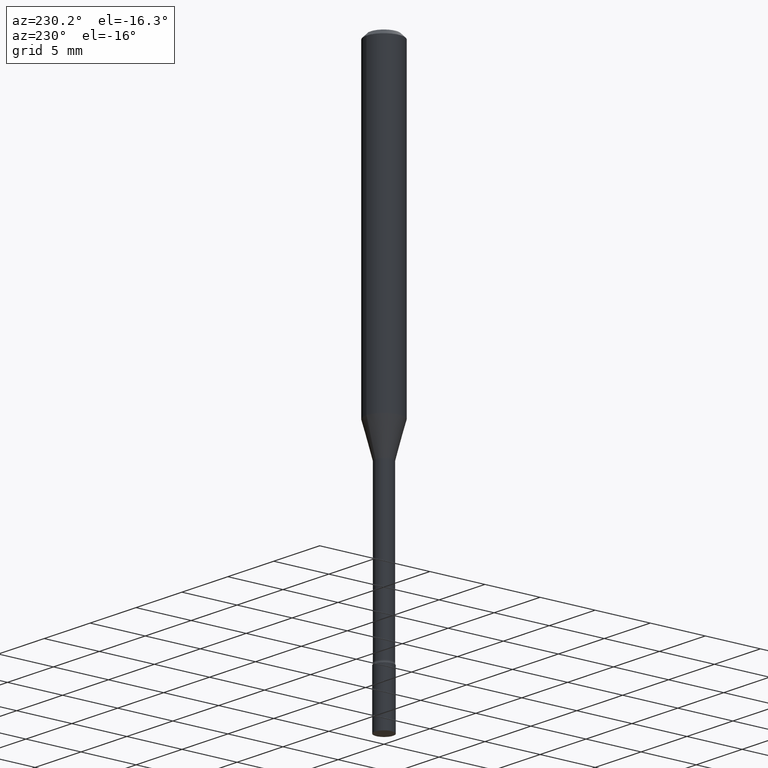
[diagram: clean part render]
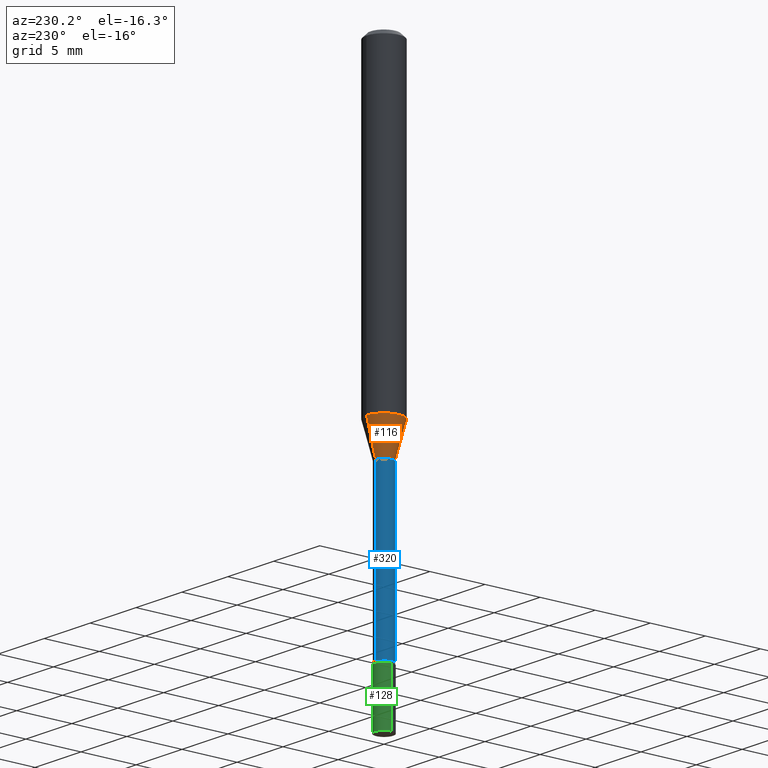
[diagram: same view with three faces highlighted in distinct colors, each labeled with its STEP entity id]
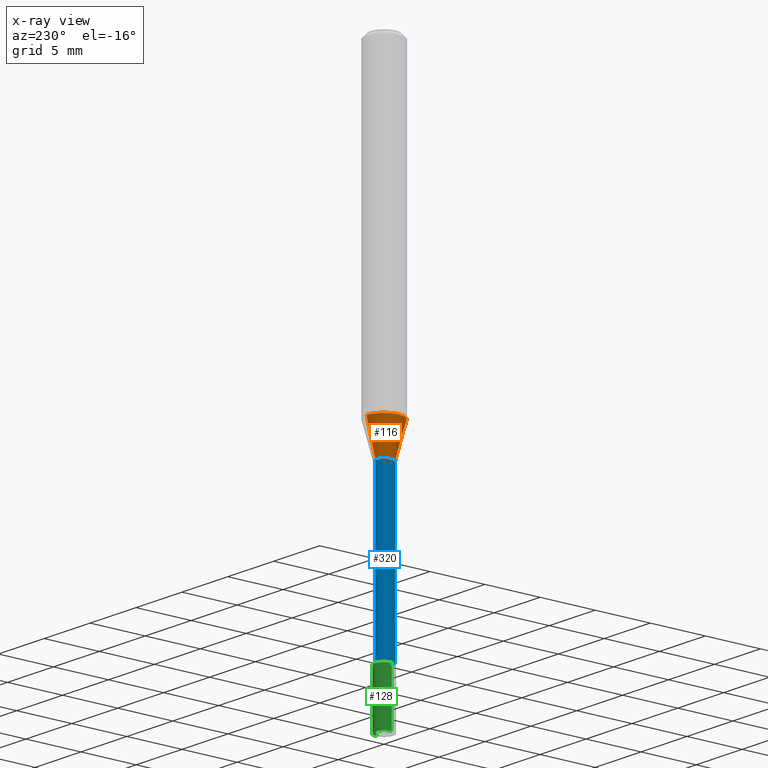
[diagram: x-ray of the same camera — body ghosted, the three highlighted faces saturated]
A machine part, auxiliary view with three faces highlighted in distinct colors.
The next image is the same camera in x-ray (body ghosted, the three faces saturated) — at least one of them is partly hidden behind the body in this view.
Their STEP definitions:

[orange] entity #116 — the highlighted conical surface has half-angle 15 deg.
#3 = DIRECTION ( 'NONE',  ( -2.445446564230640658E-29, 3.491513190587917155E-15, 1.000000000000000000 ) ) ;
#4 = DIRECTION ( 'NONE',  ( -6.982962677686265922E-15, -1.000000000000000000, 4.370956789862821150E-15 ) ) ;
#10 = EDGE_CURVE ( 'NONE', #101, #502, #59, .T. ) ;
#22 = CARTESIAN_POINT ( 'NONE',  ( -4.364351673553646016E-16, -0.06250000000000383027, -1.100760976698174298 ) ) ;
#35 = AXIS2_PLACEMENT_3D ( 'NONE', #194, #3, #276 ) ;
#40 = CIRCLE ( 'NONE', #452, 0.03106111260566394444 ) ;
#56 = EDGE_LOOP ( 'NONE', ( #448, #264, #328, #95 ) ) ;
#59 = LINE ( 'NONE', #461, #353 ) ;
#74 = LINE ( 'NONE', #106, #374 ) ;
#95 = ORIENTED_EDGE ( 'NONE', *, *, #193, .F. ) ;
#101 = VERTEX_POINT ( 'NONE', #268 ) ;
#106 = CARTESIAN_POINT ( 'NONE',  ( 2.207024792658396852E-16, 0.03106111260565969090, -1.218092501787273241 ) ) ;
#111 = FACE_OUTER_BOUND ( 'NONE', #56, .T. ) ;
#116 = ADVANCED_FACE ( 'NONE', ( #111 ), #157, .T. ) ;
#125 = DIRECTION ( 'NONE',  ( -6.982962677686265922E-15, -1.000000000000000000, 4.397537249142380957E-15 ) ) ;
#152 = DIRECTION ( 'NONE',  ( 1.839019923739597160E-15, 0.2588190451025245142, 0.9659258262890673130 ) ) ;
#157 = CONICAL_SURFACE ( 'NONE', #35, 0.03106111260566394444, 0.2617993877991497964 ) ;
#169 = CIRCLE ( 'NONE', #474, 0.06250000000000000000 ) ;
#181 = CARTESIAN_POINT ( 'NONE',  ( 2.978780123410792482E-29, -4.252986037346500323E-15, -1.218092501787273241 ) ) ;
#188 = EDGE_CURVE ( 'NONE', #212, #424, #74, .T. ) ;
#193 = EDGE_CURVE ( 'NONE', #424, #502, #169, .T. ) ;
#194 = CARTESIAN_POINT ( 'NONE',  ( 2.978780123410792482E-29, -4.252986037346500323E-15, -1.218092501787273241 ) ) ;
#212 = VERTEX_POINT ( 'NONE', #312 ) ;
#238 = DIRECTION ( 'NONE',  ( -2.445446564230640658E-29, 3.491513190587917155E-15, 1.000000000000000000 ) ) ;
#264 = ORIENTED_EDGE ( 'NONE', *, *, #416, .T. ) ;
#268 = CARTESIAN_POINT ( 'NONE',  ( -2.168985900527319414E-16, -0.03106111260566819451, -1.218092501787273019 ) ) ;
#270 = CARTESIAN_POINT ( 'NONE',  ( 2.691852148505715417E-29, -3.843321469826115367E-15, -1.100760976698174520 ) ) ;
#276 = DIRECTION ( 'NONE',  ( -6.982962677686265922E-15, -1.000000000000000000, 4.397537249142380957E-15 ) ) ;
#287 = DIRECTION ( 'NONE',  ( -2.445446564230640658E-29, 3.491513190587917155E-15, 1.000000000000000000 ) ) ;
#312 = CARTESIAN_POINT ( 'NONE',  ( 3.323958445579646476E-16, 0.03106111260565969090, -1.218092501787273241 ) ) ;
#328 = ORIENTED_EDGE ( 'NONE', *, *, #10, .T. ) ;
#353 = VECTOR ( 'NONE', #459, 39.37007874015748143 ) ;
#374 = VECTOR ( 'NONE', #152, 39.37007874015748143 ) ;
#416 = EDGE_CURVE ( 'NONE', #212, #101, #40, .T. ) ;
#424 = VERTEX_POINT ( 'NONE', #501 ) ;
#448 = ORIENTED_EDGE ( 'NONE', *, *, #188, .F. ) ;
#452 = AXIS2_PLACEMENT_3D ( 'NONE', #181, #287, #125 ) ;
#459 = DIRECTION ( 'NONE',  ( -1.807323732225326984E-15, -0.2588190451025177419, 0.9659258262890690894 ) ) ;
#461 = CARTESIAN_POINT ( 'NONE',  ( -2.168985900527319414E-16, -0.03106111260566819451, -1.218092501787273019 ) ) ;
#474 = AXIS2_PLACEMENT_3D ( 'NONE', #270, #238, #4 ) ;
#501 = CARTESIAN_POINT ( 'NONE',  ( 4.440892098500895360E-16, 0.06249999999999616279, -1.100760976698174742 ) ) ;
#502 = VERTEX_POINT ( 'NONE', #22 ) ;

[blue] entity #320 — the highlighted cylindrical surface (edge-blend (fillet) strip) has radius 0.776 mm, axis along (-0, 0, 1).
#6 = CIRCLE ( 'NONE', #363, 0.03055000000000000077 ) ;
#25 = CARTESIAN_POINT ( 'NONE',  ( -2.133295098032718676E-16, -0.03055000000000632904, -1.797604224178627419 ) ) ;
#42 = DIRECTION ( 'NONE',  ( -6.982962677686265133E-15, -1.000000000000000000, 0.000000000000000000 ) ) ;
#45 = CARTESIAN_POINT ( 'NONE',  ( -2.133295098032855247E-16, -0.03055000000000426819, -1.221974787463810719 ) ) ;
#52 = VERTEX_POINT ( 'NONE', #25 ) ;
#58 = DIRECTION ( 'NONE',  ( -6.982962677686265133E-15, -1.000000000000000000, 4.471109645931690737E-15 ) ) ;
#77 = CARTESIAN_POINT ( 'NONE',  ( 2.239985974484158404E-16, 0.03054999999999378005, -1.797604224178627419 ) ) ;
#86 = EDGE_CURVE ( 'NONE', #373, #97, #430, .T. ) ;
#90 = CARTESIAN_POINT ( 'NONE',  ( -2.133295098033156001E-16, -0.03055000000000002505, 1.066657279724609578E-16 ) ) ;
#97 = VERTEX_POINT ( 'NONE', #114 ) ;
#114 = CARTESIAN_POINT ( 'NONE',  ( 2.170708057747546898E-16, 0.03054999999999572988, -1.221974787463810941 ) ) ;
#167 = CARTESIAN_POINT ( 'NONE',  ( 4.395945073864110714E-29, -6.276358860176236554E-15, -1.797604224178627419 ) ) ;
#190 = CARTESIAN_POINT ( 'NONE',  ( 2.170708057747107601E-16, 0.03055000000000002505, -1.066657279724609578E-16 ) ) ;
#191 = CIRCLE ( 'NONE', #210, 0.03055000000000005628 ) ;
#192 = VECTOR ( 'NONE', #479, 39.37007874015748143 ) ;
#201 = DIRECTION ( 'NONE',  ( -2.445446564230640658E-29, 3.491513190587917155E-15, 1.000000000000000000 ) ) ;
#204 = ORIENTED_EDGE ( 'NONE', *, *, #296, .T. ) ;
#210 = AXIS2_PLACEMENT_3D ( 'NONE', #167, #318, #42 ) ;
#215 = ORIENTED_EDGE ( 'NONE', *, *, #86, .F. ) ;
#216 = DIRECTION ( 'NONE',  ( -2.445446564230640658E-29, 3.491513190587917155E-15, 1.000000000000000000 ) ) ;
#250 = DIRECTION ( 'NONE',  ( -6.982962677686265922E-15, -1.000000000000000000, 3.491513190587917155E-15 ) ) ;
#251 = EDGE_LOOP ( 'NONE', ( #215, #204, #411, #492 ) ) ;
#288 = VERTEX_POINT ( 'NONE', #45 ) ;
#296 = EDGE_CURVE ( 'NONE', #373, #52, #191, .T. ) ;
#318 = DIRECTION ( 'NONE',  ( -2.445446564230640658E-29, 3.491513190587917155E-15, 1.000000000000000000 ) ) ;
#320 = ADVANCED_FACE ( 'NONE', ( #367 ), #439, .T. ) ;
#325 = VECTOR ( 'NONE', #216, 39.37007874015748143 ) ;
#336 = DIRECTION ( 'NONE',  ( -2.445446564230640658E-29, 3.491513190587917155E-15, 1.000000000000000000 ) ) ;
#363 = AXIS2_PLACEMENT_3D ( 'NONE', #510, #336, #58 ) ;
#367 = FACE_OUTER_BOUND ( 'NONE', #251, .T. ) ;
#373 = VERTEX_POINT ( 'NONE', #77 ) ;
#384 = EDGE_CURVE ( 'NONE', #97, #288, #6, .T. ) ;
#397 = AXIS2_PLACEMENT_3D ( 'NONE', #410, #201, #250 ) ;
#410 = CARTESIAN_POINT ( 'NONE',  ( 0.000000000000000000, 0.000000000000000000, 0.000000000000000000 ) ) ;
#411 = ORIENTED_EDGE ( 'NONE', *, *, #472, .T. ) ;
#421 = LINE ( 'NONE', #90, #325 ) ;
#430 = LINE ( 'NONE', #190, #192 ) ;
#439 = CYLINDRICAL_SURFACE ( 'NONE', #397, 0.03055000000000002505 ) ;
#472 = EDGE_CURVE ( 'NONE', #52, #288, #421, .T. ) ;
#479 = DIRECTION ( 'NONE',  ( -2.445446564230640658E-29, 3.491513190587917155E-15, 1.000000000000000000 ) ) ;
#492 = ORIENTED_EDGE ( 'NONE', *, *, #384, .F. ) ;
#510 = CARTESIAN_POINT ( 'NONE',  ( 2.988274045579844042E-29, -4.266541088995761830E-15, -1.221974787463810941 ) ) ;

[green] entity #128 — the highlighted cylindrical surface (edge-blend (fillet) strip) has radius 0.8255 mm, axis along (-0, 0, 1).
#16 = LINE ( 'NONE', #300, #19 ) ;
#19 = VECTOR ( 'NONE', #100, 39.37007874015748143 ) ;
#23 = VERTEX_POINT ( 'NONE', #180 ) ;
#27 = AXIS2_PLACEMENT_3D ( 'NONE', #271, #399, #360 ) ;
#44 = EDGE_CURVE ( 'NONE', #23, #246, #16, .T. ) ;
#61 = CARTESIAN_POINT ( 'NONE',  ( 0.03250000000000000111, -6.529070103636681305E-15, -1.804999999999999938 ) ) ;
#62 = EDGE_LOOP ( 'NONE', ( #313, #376, #110, #331 ) ) ;
#68 = EDGE_CURVE ( 'NONE', #414, #246, #275, .T. ) ;
#87 = VECTOR ( 'NONE', #375, 39.37007874015748143 ) ;
#93 = CARTESIAN_POINT ( 'NONE',  ( 0.03250000000000000111, -7.209908964711093729E-15, -2.000000000000000000 ) ) ;
#100 = DIRECTION ( 'NONE',  ( -2.445468806185136877E-29, 3.491481338843145188E-15, 1.000000000000000000 ) ) ;
#110 = ORIENTED_EDGE ( 'NONE', *, *, #68, .F. ) ;
#126 = CIRCLE ( 'NONE', #497, 0.03250000000000000111 ) ;
#128 = ADVANCED_FACE ( 'NONE', ( #229 ), #394, .T. ) ;
#151 = DIRECTION ( 'NONE',  ( 1.000000000000000000, -6.982962677686265922E-15, 4.876176775795935232E-29 ) ) ;
#163 = AXIS2_PLACEMENT_3D ( 'NONE', #195, #347, #151 ) ;
#171 = CARTESIAN_POINT ( 'NONE',  ( 0.03250000000000000111, -2.269462870248036484E-16, 1.584757452133678993E-30 ) ) ;
#180 = CARTESIAN_POINT ( 'NONE',  ( -0.03250000000000000111, -6.411616858027052188E-15, -2.000000000000000000 ) ) ;
#195 = CARTESIAN_POINT ( 'NONE',  ( 0.000000000000000000, 0.000000000000000000, 0.000000000000000000 ) ) ;
#229 = FACE_OUTER_BOUND ( 'NONE', #62, .T. ) ;
#246 = VERTEX_POINT ( 'NONE', #327 ) ;
#271 = CARTESIAN_POINT ( 'NONE',  ( 4.414071195164171423E-29, -6.302123816611877952E-15, -1.804999999999999938 ) ) ;
#275 = CIRCLE ( 'NONE', #27, 0.03250000000000000111 ) ;
#299 = LINE ( 'NONE', #171, #87 ) ;
#300 = CARTESIAN_POINT ( 'NONE',  ( -0.03250000000000000111, 2.309263891220325683E-16, -1.598653904332844407E-30 ) ) ;
#313 = ORIENTED_EDGE ( 'NONE', *, *, #396, .T. ) ;
#327 = CARTESIAN_POINT ( 'NONE',  ( -0.03250000000000000111, -6.411616858027052188E-15, -1.804999999999999938 ) ) ;
#331 = ORIENTED_EDGE ( 'NONE', *, *, #446, .F. ) ;
#332 = DIRECTION ( 'NONE',  ( 1.000000000000000000, -6.982962677686258033E-15, 0.000000000000000000 ) ) ;
#347 = DIRECTION ( 'NONE',  ( -2.445468806185136597E-29, 3.491481338843145583E-15, 1.000000000000000000 ) ) ;
#360 = DIRECTION ( 'NONE',  ( 1.000000000000000000, -6.982962677686258033E-15, 0.000000000000000000 ) ) ;
#375 = DIRECTION ( 'NONE',  ( -2.445468806185136877E-29, 3.491481338843145188E-15, 1.000000000000000000 ) ) ;
#376 = ORIENTED_EDGE ( 'NONE', *, *, #44, .T. ) ;
#394 = CYLINDRICAL_SURFACE ( 'NONE', #163, 0.03250000000000000111 ) ;
#396 = EDGE_CURVE ( 'NONE', #496, #23, #126, .T. ) ;
#399 = DIRECTION ( 'NONE',  ( -2.445468806185136597E-29, 3.491481338843145583E-15, 1.000000000000000000 ) ) ;
#413 = CARTESIAN_POINT ( 'NONE',  ( 4.890937612370273194E-29, -6.982962677686291165E-15, -2.000000000000000000 ) ) ;
#414 = VERTEX_POINT ( 'NONE', #61 ) ;
#423 = DIRECTION ( 'NONE',  ( -2.445468806185136597E-29, 3.491481338843145583E-15, 1.000000000000000000 ) ) ;
#446 = EDGE_CURVE ( 'NONE', #496, #414, #299, .T. ) ;
#496 = VERTEX_POINT ( 'NONE', #93 ) ;
#497 = AXIS2_PLACEMENT_3D ( 'NONE', #413, #423, #332 ) ;